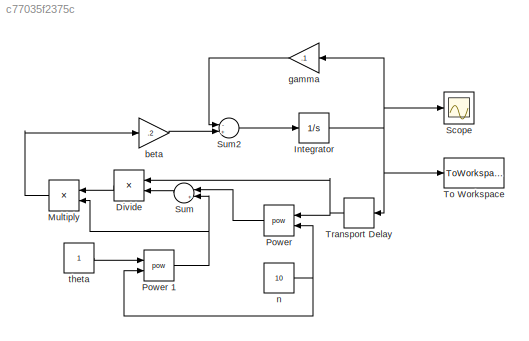
MODEL slx_c77035f2375c
KIND model
BLOCK [Product] Divide
  InputSameDT = off
  Inputs = */
  OutDataTypeStr = Inherit: Inherit via internal rule
  Ports = [2, 1]
  RndMeth = Floor
  SaturateOnIntegerOverflow = off
BLOCK [Integrator] Integrator
  InitialCondition = 0.1
  Ports = [1, 1]
BLOCK [Product] Multiply
  InputSameDT = off
  OutDataTypeStr = Inherit: Inherit via internal rule
  Ports = [2, 1]
  RndMeth = Floor
  SaturateOnIntegerOverflow = off
BLOCK [Math] Power
  Operator = pow
  Ports = [2, 1]
BLOCK [Math] Power 1
  Operator = pow
  Ports = [2, 1]
BLOCK [Scope] Scope
  DataFormat = StructureWithTime
  Floating = off
  NumInputPorts = 1
  Ports = [1]
  SampleTime = 0
  ShowLegends = off
BLOCK [Sum] Sum
  InputSameDT = off
  Inputs = |++
  OutDataTypeStr = Inherit: Inherit via internal rule
  Ports = [2, 1]
  SaturateOnIntegerOverflow = off
BLOCK [Sum] Sum2
  InputSameDT = off
  Inputs = -+
  OutDataTypeStr = Inherit: Inherit via internal rule
  Ports = [2, 1]
  SaturateOnIntegerOverflow = off
BLOCK [ToWorkspace] To Workspace
  MaxDataPoints = inf
  Ports = [1]
  SampleTime = -1
  VariableName = x
BLOCK [TransportDelay] Transport Delay
  DelayTime = 20
  Ports = [1, 1]
BLOCK [Gain] beta
  Gain = .2
  OutDataTypeStr = Inherit: Inherit via internal rule
  ParamDataTypeStr = Inherit: Inherit via internal rule
  SaturateOnIntegerOverflow = off
BLOCK [Gain] gamma
  Gain = .1
  OutDataTypeStr = Inherit: Inherit via internal rule
  ParamDataTypeStr = Inherit: Inherit via internal rule
  SaturateOnIntegerOverflow = off
BLOCK [Constant] n
  Value = 10
BLOCK [Constant] theta
LINE Divide:1 -> Multiply:1
NET Integrator:1 -> Scope:1, To Workspace:1, Transport Delay:1, gamma:1
LINE Multiply:1 -> beta:1
NET Power 1:1 -> Multiply:2, Sum:2
LINE Power:1 -> Sum:1
LINE Sum2:1 -> Integrator:1
LINE Sum:1 -> Divide:2
NET Transport Delay:1 -> Divide:1, Power:1
LINE beta:1 -> Sum2:2
LINE gamma:1 -> Sum2:1
NET n:1 -> Power 1:2, Power:2
LINE theta:1 -> Power 1:1
note: NET lines group one-source signal fan-out (src -> all destinations, sorted); 1:1 wires keep LINE
